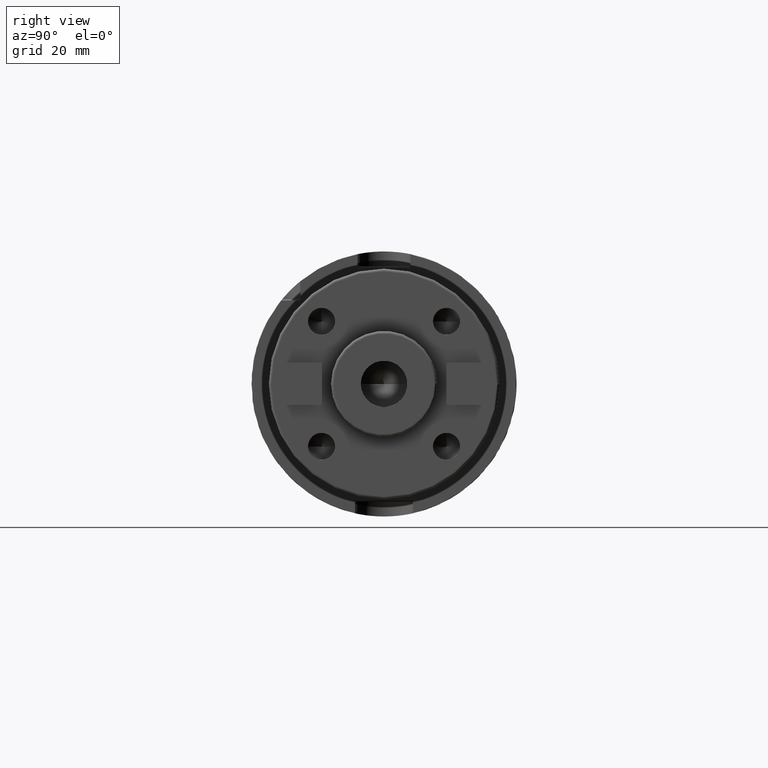
[diagram: clean part render]
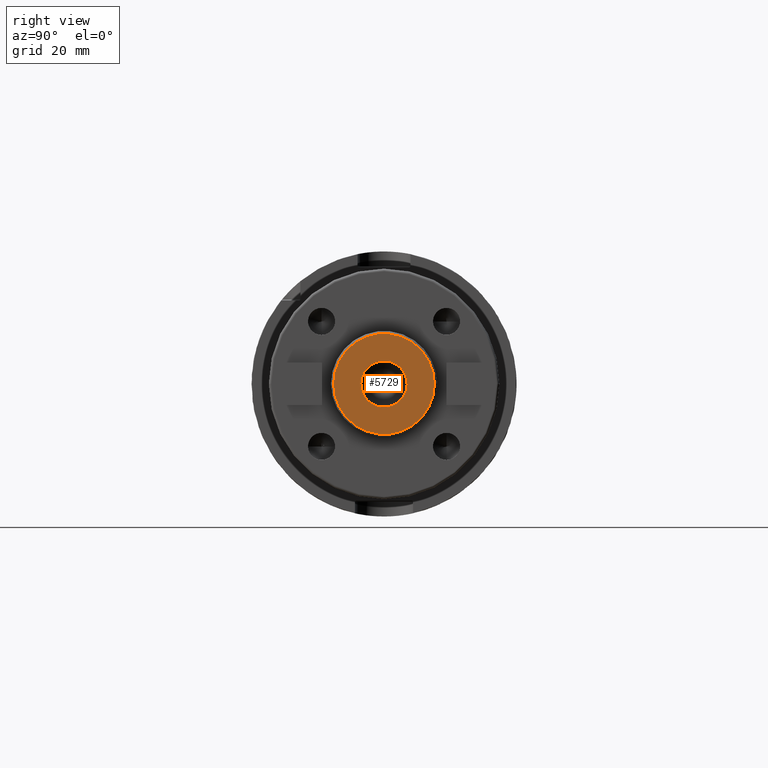
[diagram: same view with one face highlighted and labeled with its STEP entity id]
A machine part, right view. The second image highlights one B-rep face of the part: STEP entity #5729.
In plain terms, the highlighted planar face has unit normal (1, 0, 0).
Its self-contained STEP definition (entity closure, byte-faithful):
#2046=CARTESIAN_POINT('',(1.87E2,0.E0,0.E0));
#2047=DIRECTION('',(-1.E0,0.E0,0.E0));
#2048=DIRECTION('',(0.E0,-1.E0,0.E0));
#2049=AXIS2_PLACEMENT_3D('',#2046,#2047,#2048);
#2051=CARTESIAN_POINT('',(1.87E2,0.E0,0.E0));
#2052=DIRECTION('',(-1.E0,0.E0,0.E0));
#2053=DIRECTION('',(0.E0,1.E0,0.E0));
#2054=AXIS2_PLACEMENT_3D('',#2051,#2052,#2053);
#2056=CARTESIAN_POINT('',(1.87E2,0.E0,0.E0));
#2057=DIRECTION('',(1.E0,0.E0,0.E0));
#2058=DIRECTION('',(0.E0,-1.E0,0.E0));
#2059=AXIS2_PLACEMENT_3D('',#2056,#2057,#2058);
#2061=CARTESIAN_POINT('',(1.87E2,0.E0,0.E0));
#2062=DIRECTION('',(1.E0,0.E0,0.E0));
#2063=DIRECTION('',(0.E0,1.E0,0.E0));
#2064=AXIS2_PLACEMENT_3D('',#2061,#2062,#2063);
#3489=CARTESIAN_POINT('',(1.87E2,-8.75E0,0.E0));
#3490=CARTESIAN_POINT('',(1.87E2,8.75E0,0.E0));
#3491=VERTEX_POINT('',#3489);
#3492=VERTEX_POINT('',#3490);
#3497=CARTESIAN_POINT('',(1.87E2,-1.9E1,0.E0));
#3498=CARTESIAN_POINT('',(1.87E2,1.9E1,0.E0));
#3499=VERTEX_POINT('',#3497);
#3500=VERTEX_POINT('',#3498);
#5714=CARTESIAN_POINT('',(1.87E2,0.E0,0.E0));
#5715=DIRECTION('',(1.E0,0.E0,0.E0));
#5716=DIRECTION('',(0.E0,-1.E0,0.E0));
#5717=AXIS2_PLACEMENT_3D('',#5714,#5715,#5716);
#5718=PLANE('',#5717);
#5719=ORIENTED_EDGE('',*,*,#5681,.T.);
#5720=ORIENTED_EDGE('',*,*,#5696,.T.);
#5721=EDGE_LOOP('',(#5719,#5720));
#5722=FACE_OUTER_BOUND('',#5721,.F.);
#5724=ORIENTED_EDGE('',*,*,#5723,.T.);
#5726=ORIENTED_EDGE('',*,*,#5725,.T.);
#5727=EDGE_LOOP('',(#5724,#5726));
#5728=FACE_BOUND('',#5727,.F.);
#5729=ADVANCED_FACE('',(#5722,#5728),#5718,.T.);
#2050=CIRCLE('',#2049,1.9E1);
#2055=CIRCLE('',#2054,1.9E1);
#2060=CIRCLE('',#2059,8.75E0);
#2065=CIRCLE('',#2064,8.75E0);
#5681=EDGE_CURVE('',#3499,#3500,#2050,.T.);
#5696=EDGE_CURVE('',#3500,#3499,#2055,.T.);
#5723=EDGE_CURVE('',#3491,#3492,#2060,.T.);
#5725=EDGE_CURVE('',#3492,#3491,#2065,.T.);